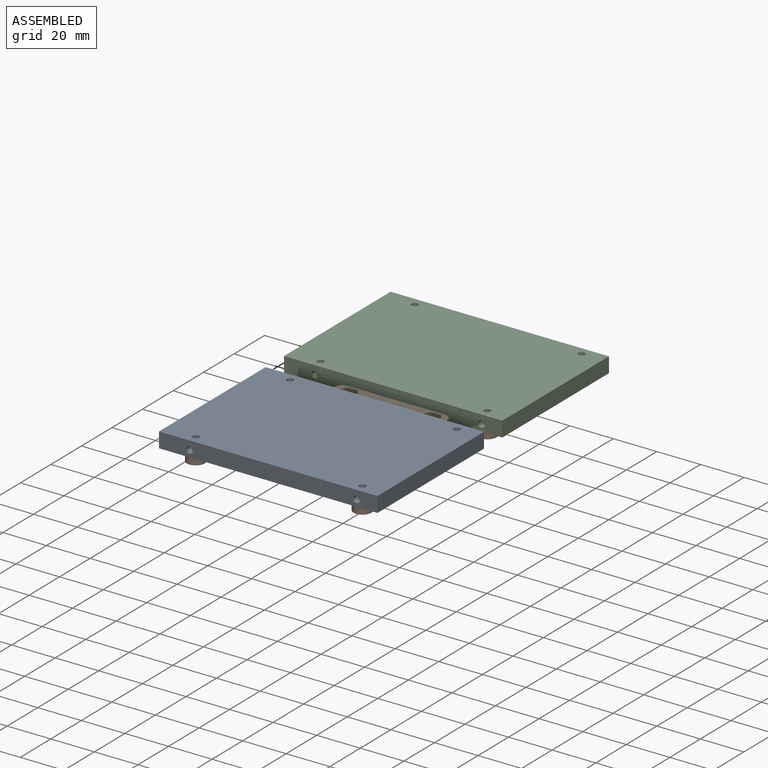
[diagram: assembled view]
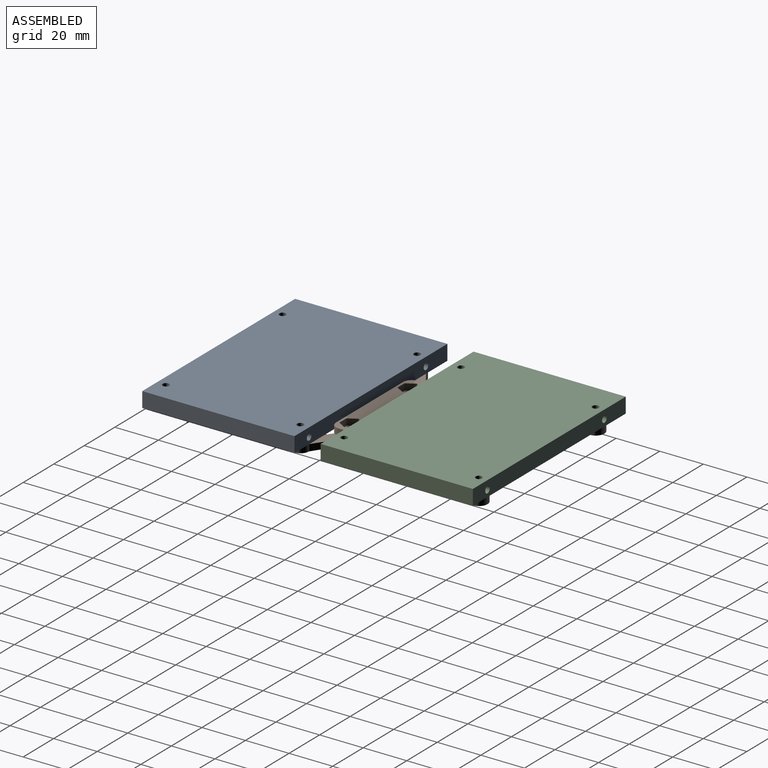
[diagram: assembled view, second angle]
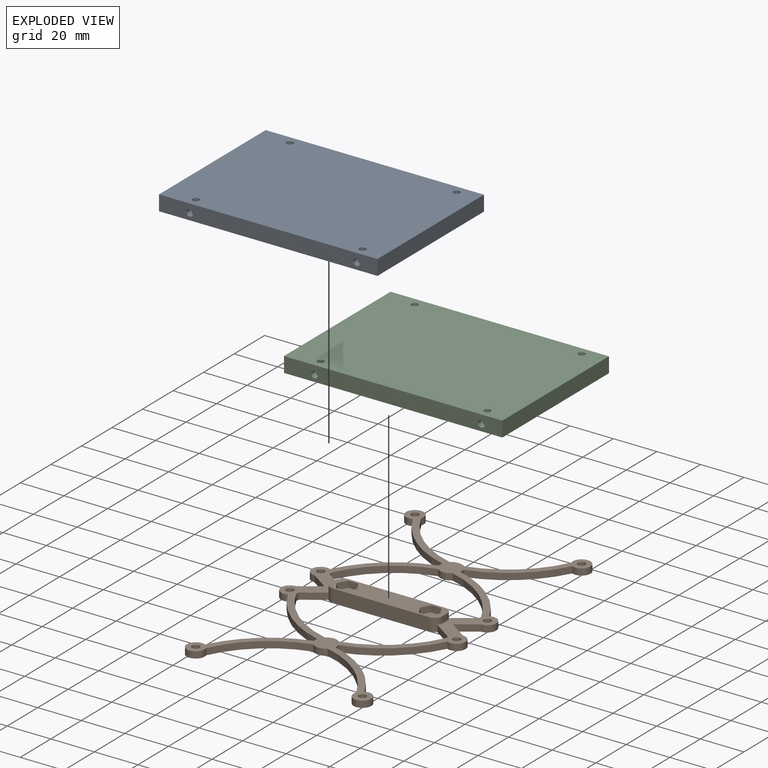
[diagram: exploded view]
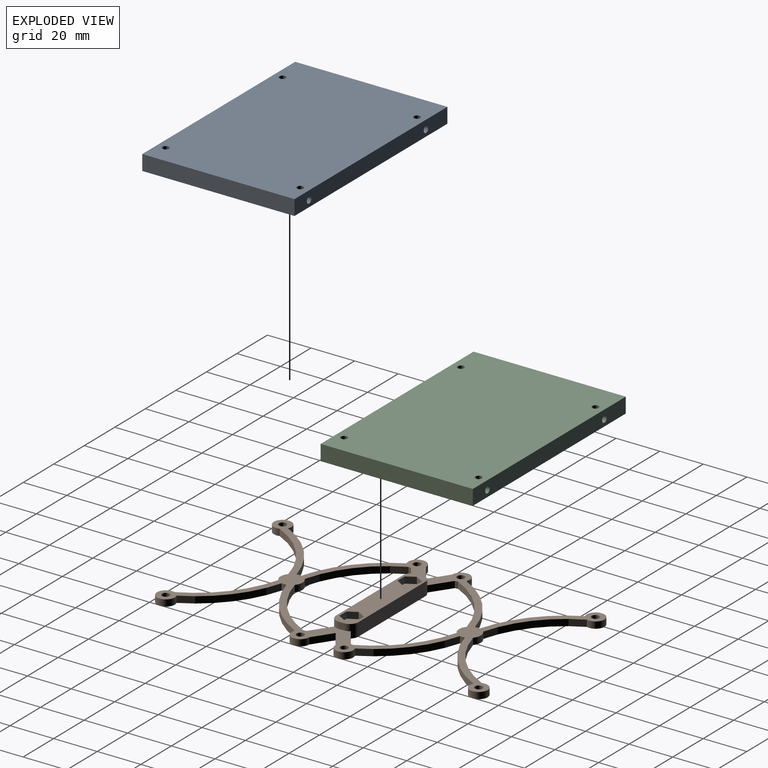
[diagram: exploded view, second angle]
ASSEMBLY  parts=3 mates=2
PART A: 20 faces, bbox 100.2x69.9x7 mm
  f0: cylinder r=1.5mm len=3mm, axis (0,0,-1), area 19.3mm2, adj f13,f18,f19
  f1: cylinder r=1.5mm len=3mm, axis (0,0,-1), area 19.3mm2, adj f13,f17,f18
  f2: plane 3.86x1mm, normal (0,-1,0), area 3.9mm2, adj f3,f5,f13,f15
  f3: plane 50.83x1mm, normal (-1,0,0), area 50.8mm2, adj f2,f4,f13,f15
  f4: plane 3.86x1mm, normal (0,1,0), area 3.9mm2, adj f3,f5,f13,f15
  f5: plane 69.85x7mm, normal (-1,0,0), area 438.1mm2, adj f2,f4,f6,f12,f13,f14,f15
  f6: plane 100.2x7mm, normal (0,-1,0), area 687.3mm2, adj f5,f7,f13,f14,f16,f19
  f7: plane 69.85x7mm, normal (1,0,0), area 488.9mm2, adj f6,f12,f13,f14
  f8: cylinder r=1.5mm len=4mm, axis (0,0,-1), area 28.7mm2, adj f14,f18,f19
  f9: cylinder r=1.5mm len=7mm, axis (0,0,-1), area 48mm2, adj f13,f14,f16
  f10: cylinder r=1.5mm len=7mm, axis (0,0,-1), area 48mm2, adj f13,f14,f16
  f11: cylinder r=1.5mm len=4mm, axis (0,0,-1), area 28.7mm2, adj f14,f17,f18
  f12: plane 100.2x7mm, normal (0,1,0), area 687.3mm2, adj f5,f7,f13,f14,f16,f17
  f13: plane 100.2x69.85mm, normal (0,0,1), area 6774.5mm2, adj f0,f1,f2,f3,f4,f5,f6,f7
  f14: plane 100.2x69.85mm, normal (0,0,-1), area 6970.7mm2, adj f5,f6,f7,f8,f9,f10,f11,f12
  f15: plane 50.83x3.86mm, normal (0,0,1), area 196.2mm2, adj f2,f3,f4,f5
  f16: cylinder r=1.5mm len=69.85mm, axis (0,-1,0), area 622.4mm2, adj f6,f9,f10,f12
  f17: cylinder r=1.5mm len=4.06mm, axis (0,-1,0), area 29.3mm2, adj f1,f11,f12
  f18: cylinder r=1.5mm len=61.72mm, axis (0,-1,0), area 563.7mm2, adj f0,f1,f8,f11
  f19: cylinder r=1.5mm len=4.07mm, axis (0,-1,0), area 29.4mm2, adj f0,f6,f8
PART B: 79 faces, bbox 84.6x151.7x6 mm
  f0: plane 151.7x84.64mm, normal (0,0,1), area 1744.4mm2, adj f3,f4,f5,f6,f7,f8,f9,f10
  f1: plane 9.24x8mm, normal (0,0,1), area 40.9mm2, adj f54,f69,f70,f71,f72,f73,f76
  f2: plane 9.24x8mm, normal (0,0,1), area 40.9mm2, adj f55,f64,f65,f66,f67,f68,f77
  f3: cylinder r=3.81mm len=6mm, axis (0,0,-1), area 28mm2, adj f0,f4,f56,f63,f75,f78
  f4: plane 9.26x6.33mm, normal (-0.56,-0.83,0), area 33.7mm2, adj f0,f3,f5,f63
  f5: cylinder r=4.06mm len=3mm, axis (0,0,-1), area 4mm2, adj f0,f4,f6,f63
  f6: cylinder r=47.8mm len=31.13mm, axis (0,0,-1), area 125.2mm2, adj f0,f5,f7,f63
  f7: cylinder r=5mm len=6.54mm, axis (0,0,-1), area 21.4mm2, adj f0,f6,f8,f63
  f8: cylinder r=47.8mm len=31.13mm, axis (0,0,-1), area 125.2mm2, adj f0,f7,f9,f63
  f9: cylinder r=4.06mm len=3mm, axis (0,0,-1), area 4mm2, adj f0,f8,f10,f63
  f10: plane 9.26x6.33mm, normal (0.56,-0.83,0), area 33.7mm2, adj f0,f9,f11,f63
  f11: cylinder r=3.81mm len=6mm, axis (0,0,-1), area 28mm2, adj f0,f10,f56,f63,f74,f78
  f12: cylinder r=5mm len=6.54mm, axis (0,0,-1), area 21.4mm2, adj f0,f13,f59,f63
  f13: cylinder r=47.8mm len=31.12mm, axis (0,0,-1), area 125.1mm2, adj f0,f12,f14,f63
  f14: cylinder r=4.07mm len=3mm, axis (0,0,-1), area 4mm2, adj f0,f13,f15,f63
  f15: plane 9.26x6.33mm, normal (-0.56,0.83,0), area 33.6mm2, adj f0,f14,f16,f63
  f16: cylinder r=3.81mm len=6mm, axis (0,0,-1), area 28mm2, adj f0,f15,f17,f63,f75,f78
  f17: plane 43.99x6mm, normal (0,1,0), area 263.9mm2, adj f16,f18,f63,f78
  f18: cylinder r=3.81mm len=6mm, axis (0,0,-1), area 28mm2, adj f0,f17,f19,f63,f74,f78
  f19: plane 9.26x6.33mm, normal (0.56,0.83,0), area 33.6mm2, adj f0,f18,f20,f63
  f20: cylinder r=4.07mm len=3mm, axis (0,0,-1), area 4mm2, adj f0,f19,f59,f63
  f21: cylinder r=50.8mm len=31.69mm, axis (0,0,-1), area 126.7mm2, adj f0,f22,f61,f63
  f22: cylinder r=5mm len=3mm, axis (0,0,-1), area 6.7mm2, adj f0,f21,f23,f63
  f23: cylinder r=50.8mm len=31.69mm, axis (0,0,-1), area 126.7mm2, adj f0,f22,f24,f63
  f24: cylinder r=4.07mm len=8.14mm, axis (0,0,-1), area 43.6mm2, adj f0,f23,f25,f63
  f25: plane 8.78x6mm, normal (-0.56,-0.83,0), area 31.9mm2, adj f0,f24,f26,f63
  f26: plane 8.78x6mm, normal (-0.56,0.83,0), area 31.9mm2, adj f0,f25,f27,f63
  f27: cylinder r=4.06mm len=8.12mm, axis (0,0,-1), area 43.5mm2, adj f0,f26,f28,f63
  f28: cylinder r=50.8mm len=31.69mm, axis (0,0,-1), area 126.7mm2, adj f0,f27,f29,f63
  f29: cylinder r=5mm len=3mm, axis (0,0,-1), area 6.7mm2, adj f0,f28,f30,f63
  f30: cylinder r=50.8mm len=31.69mm, axis (0,0,-1), area 126.7mm2, adj f0,f29,f31,f63
  f31: cylinder r=4.07mm len=8.14mm, axis (0,0,-1), area 66.8mm2, adj f0,f30,f32,f63
  f32: cylinder r=47.8mm len=31.12mm, axis (0,0,-1), area 125.1mm2, adj f0,f31,f33,f63
  f33: cylinder r=5mm len=6.54mm, axis (0,0,-1), area 21.4mm2, adj f0,f32,f34,f63
  f34: cylinder r=47.8mm len=31.12mm, axis (0,0,-1), area 125.1mm2, adj f0,f33,f35,f63
  f35: cylinder r=4.07mm len=8.14mm, axis (0,0,-1), area 66.8mm2, adj f0,f34,f36,f63
  f36: cylinder r=50.8mm len=31.69mm, axis (0,0,-1), area 126.7mm2, adj f0,f35,f37,f63
  f37: cylinder r=5mm len=3mm, axis (0,0,-1), area 6.7mm2, adj f0,f36,f38,f63
  f38: cylinder r=50.8mm len=31.69mm, axis (0,0,-1), area 126.7mm2, adj f0,f37,f39,f63
  f39: cylinder r=4.06mm len=8.12mm, axis (0,0,-1), area 43.5mm2, adj f0,f38,f40,f63
  f40: plane 8.78x6mm, normal (0.56,0.83,0), area 31.9mm2, adj f0,f39,f41,f63
  f41: plane 8.78x6mm, normal (0.56,-0.83,0), area 31.9mm2, adj f0,f40,f42,f63
  f42: cylinder r=4.07mm len=8.14mm, axis (0,0,-1), area 43.6mm2, adj f0,f41,f43,f63
  f43: cylinder r=50.8mm len=31.69mm, axis (0,0,-1), area 126.7mm2, adj f0,f42,f44,f63
  f44: cylinder r=5mm len=3mm, axis (0,0,-1), area 6.7mm2, adj f0,f43,f45,f63
  f45: cylinder r=50.8mm len=31.69mm, axis (0,0,-1), area 126.7mm2, adj f0,f44,f46,f63
  f46: cylinder r=4.06mm len=8.12mm, axis (0,0,-1), area 66.6mm2, adj f0,f45,f47,f63
  f47: cylinder r=47.8mm len=31.13mm, axis (0,0,-1), area 125.2mm2, adj f0,f46,f48,f63
  f48: cylinder r=5mm len=6.54mm, axis (0,0,-1), area 21.4mm2, adj f0,f47,f49,f63
  f49: cylinder r=47.8mm len=31.13mm, axis (0,0,-1), area 125.2mm2, adj f0,f48,f61,f63
  f50: cylinder r=1.75mm len=3.5mm, axis (0,0,-1), area 33mm2, adj f0,f63
  f51: cylinder r=1.75mm len=3.5mm, axis (0,0,-1), area 33mm2, adj f0,f63
  f52: cylinder r=1.75mm len=3.5mm, axis (0,0,-1), area 33mm2, adj f0,f63
  f53: cylinder r=1.75mm len=3.5mm, axis (0,0,-1), area 33mm2, adj f0,f63
  f54: cylinder r=2.15mm len=4.3mm, axis (0,0,-1), area 40.5mm2, adj f1,f63
  f55: cylinder r=2.15mm len=4.3mm, axis (0,0,-1), area 40.5mm2, adj f2,f63
  f56: plane 43.99x6mm, normal (0,-1,0), area 263.9mm2, adj f3,f11,f63,f78
  f57: cylinder r=1.75mm len=3.5mm, axis (0,0,-1), area 33mm2, adj f0,f63
  f58: cylinder r=1.75mm len=3.5mm, axis (0,0,-1), area 33mm2, adj f0,f63
  f59: cylinder r=47.8mm len=31.12mm, axis (0,0,-1), area 125.1mm2, adj f0,f12,f20,f63
  f60: cylinder r=1.75mm len=3.5mm, axis (0,0,-1), area 33mm2, adj f0,f63
  f61: cylinder r=4.06mm len=8.12mm, axis (0,0,-1), area 66.6mm2, adj f0,f21,f49,f63
  f62: cylinder r=1.75mm len=3.5mm, axis (0,0,-1), area 33mm2, adj f0,f63
  f63: plane 151.7x84.64mm, normal (0,0,-1), area 2230.5mm2, adj f3,f4,f5,f6,f7,f8,f9,f10
  f64: plane 4.62x3mm, normal (0,-1,0), area 13.9mm2, adj f2,f65,f77,f78
  f65: plane 4x3mm, normal (-0.87,-0.5,0), area 13.9mm2, adj f2,f64,f66,f78
  f66: plane 4x3mm, normal (-0.87,0.5,0), area 13.9mm2, adj f2,f65,f67,f78
  f67: plane 4.62x3mm, normal (0,1,0), area 13.9mm2, adj f2,f66,f68,f78
  f68: plane 4x3mm, normal (0.87,0.5,0), area 13.9mm2, adj f2,f67,f77,f78
  f69: plane 4x3mm, normal (-0.87,-0.5,0), area 13.9mm2, adj f1,f70,f76,f78
  f70: plane 4x3mm, normal (-0.87,0.5,0), area 13.9mm2, adj f1,f69,f71,f78
  f71: plane 4.62x3mm, normal (0,1,0), area 13.9mm2, adj f1,f70,f72,f78
  f72: plane 4x3mm, normal (0.87,0.5,0), area 13.9mm2, adj f1,f71,f73,f78
  f73: plane 4x3mm, normal (0.87,-0.5,0), area 13.9mm2, adj f1,f72,f76,f78
  f74: plane 3x2.6mm, normal (-1,0,0), area 7.8mm2, adj f0,f11,f18,f78
  f75: plane 3x2.6mm, normal (1,0,0), area 7.8mm2, adj f0,f3,f16,f78
  f76: plane 4.62x3mm, normal (0,-1,0), area 13.9mm2, adj f1,f69,f73,f78
  f77: plane 4x3mm, normal (0.87,-0.5,0), area 13.9mm2, adj f2,f64,f68,f78
  f78: plane 51.61x10.22mm, normal (0,0,1), area 404.2mm2, adj f3,f11,f16,f17,f18,f56,f64,f65
PART C: same geometry as A
PLACE A rot(axis=(-1,0,0),180deg) t=(125.59,-80.82,60.24)mm
PLACE B t=(125.59,-189.13,50.24)mm
PLACE C rot(axis=(-1,0,0),180deg) t=(125.59,1.03,60.24)mm
MATE fastened C.f0 <-> B.f60  axis (0,0,-1) through (-215.31,31.89,53.24)mm
MATE fastened B.f35 <-> A.f10  axis (0,0,1) through (-138.81,-111.68,53.24)mm
